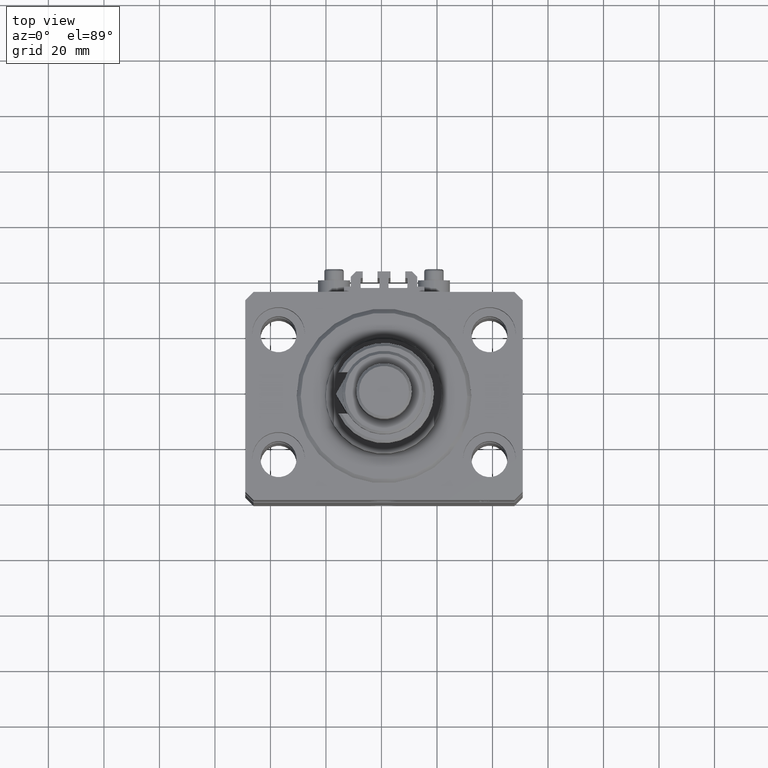
[diagram: clean part render]
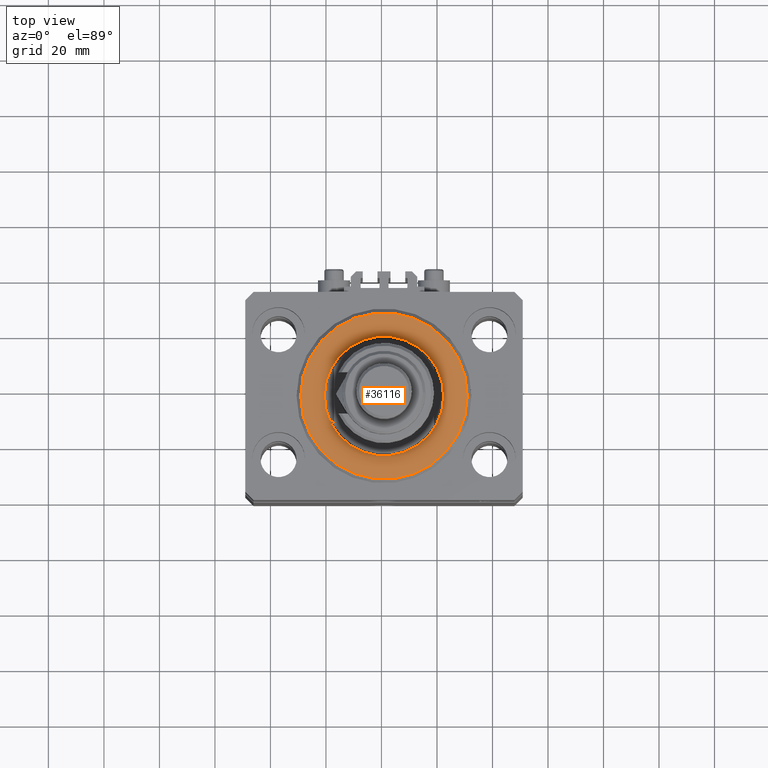
[diagram: same view with one face highlighted and labeled with its STEP entity id]
A machine part, top view. The second image highlights one B-rep face of the part: STEP entity #36116.
In plain terms, the highlighted planar face has unit normal (0, 0, -1).
Its self-contained STEP definition (entity closure, byte-faithful):
#1772 = EDGE_CURVE ( 'NONE', #44077, #19853, #27412, .T. ) ;
#2067 = CARTESIAN_POINT ( 'NONE',  ( 0.000000000000000000, 0.000000000000000000, 0.000000000000000000 ) ) ;
#3133 = DIRECTION ( 'NONE',  ( 1.000000000000000000, 0.000000000000000000, -0.000000000000000000 ) ) ;
#4339 = EDGE_CURVE ( 'NONE', #11060, #26189, #26572, .T. ) ;
#5534 = ORIENTED_EDGE ( 'NONE', *, *, #1772, .T. ) ;
#6774 = FACE_OUTER_BOUND ( 'NONE', #46799, .T. ) ;
#7372 = AXIS2_PLACEMENT_3D ( 'NONE', #28956, #12202, #24334 ) ;
#9840 = AXIS2_PLACEMENT_3D ( 'NONE', #23005, #42602, #3133 ) ;
#10174 = CARTESIAN_POINT ( 'NONE',  ( 21.50000000000000000, 0.000000000000000000, -2.168404344971008868E-16 ) ) ;
#10337 = DIRECTION ( 'NONE',  ( 0.000000000000000000, 0.000000000000000000, 1.000000000000000000 ) ) ;
#10917 = AXIS2_PLACEMENT_3D ( 'NONE', #2067, #10337, #22184 ) ;
#11060 = VERTEX_POINT ( 'NONE', #10174 ) ;
#12202 = DIRECTION ( 'NONE',  ( 0.000000000000000000, 0.000000000000000000, 1.000000000000000000 ) ) ;
#12336 = CARTESIAN_POINT ( 'NONE',  ( -21.50000000000000000, 2.632990618166809630E-15, -2.168404344971008868E-16 ) ) ;
#13263 = EDGE_CURVE ( 'NONE', #19853, #44077, #48326, .T. ) ;
#19853 = VERTEX_POINT ( 'NONE', #48900 ) ;
#21113 = ORIENTED_EDGE ( 'NONE', *, *, #13263, .T. ) ;
#21964 = AXIS2_PLACEMENT_3D ( 'NONE', #46566, #34952, #26959 ) ;
#22184 = DIRECTION ( 'NONE',  ( 1.000000000000000000, 0.000000000000000000, 0.000000000000000000 ) ) ;
#23005 = CARTESIAN_POINT ( 'NONE',  ( 0.000000000000000000, 0.000000000000000000, 0.000000000000000000 ) ) ;
#24325 = CARTESIAN_POINT ( 'NONE',  ( 0.000000000000000000, 0.000000000000000000, 0.000000000000000000 ) ) ;
#24334 = DIRECTION ( 'NONE',  ( 1.000000000000000000, 0.000000000000000000, 0.000000000000000000 ) ) ;
#26189 = VERTEX_POINT ( 'NONE', #12336 ) ;
#26572 = CIRCLE ( 'NONE', #10917, 21.50000000000000000 ) ;
#26959 = DIRECTION ( 'NONE',  ( 1.000000000000000000, 0.000000000000000000, 0.000000000000000000 ) ) ;
#27412 = CIRCLE ( 'NONE', #46384, 30.00000000000002132 ) ;
#28917 = EDGE_CURVE ( 'NONE', #26189, #11060, #29613, .T. ) ;
#28956 = CARTESIAN_POINT ( 'NONE',  ( 0.000000000000000000, 0.000000000000000000, 0.000000000000000000 ) ) ;
#29613 = CIRCLE ( 'NONE', #7372, 21.50000000000000000 ) ;
#30730 = PLANE ( 'NONE',  #9840 ) ;
#31268 = DIRECTION ( 'NONE',  ( -0.000000000000000000, -0.000000000000000000, -1.000000000000000000 ) ) ;
#34952 = DIRECTION ( 'NONE',  ( -0.000000000000000000, -0.000000000000000000, -1.000000000000000000 ) ) ;
#36116 = ADVANCED_FACE ( 'NONE', ( #50606, #6774 ), #30730, .F. ) ;
#37670 = EDGE_LOOP ( 'NONE', ( #37908, #41920 ) ) ;
#37908 = ORIENTED_EDGE ( 'NONE', *, *, #4339, .T. ) ;
#41920 = ORIENTED_EDGE ( 'NONE', *, *, #28917, .T. ) ;
#42602 = DIRECTION ( 'NONE',  ( 0.000000000000000000, 0.000000000000000000, 1.000000000000000000 ) ) ;
#42882 = DIRECTION ( 'NONE',  ( 1.000000000000000000, 0.000000000000000000, 0.000000000000000000 ) ) ;
#44077 = VERTEX_POINT ( 'NONE', #48558 ) ;
#46384 = AXIS2_PLACEMENT_3D ( 'NONE', #24325, #31268, #42882 ) ;
#46566 = CARTESIAN_POINT ( 'NONE',  ( 0.000000000000000000, 0.000000000000000000, 0.000000000000000000 ) ) ;
#46799 = EDGE_LOOP ( 'NONE', ( #21113, #5534 ) ) ;
#48326 = CIRCLE ( 'NONE', #21964, 30.00000000000002132 ) ;
#48558 = CARTESIAN_POINT ( 'NONE',  ( -30.00000000000002132, 3.765788907378112117E-15, 0.000000000000000000 ) ) ;
#48900 = CARTESIAN_POINT ( 'NONE',  ( 30.00000000000002132, 0.000000000000000000, 0.000000000000000000 ) ) ;
#50606 = FACE_BOUND ( 'NONE', #37670, .T. ) ;